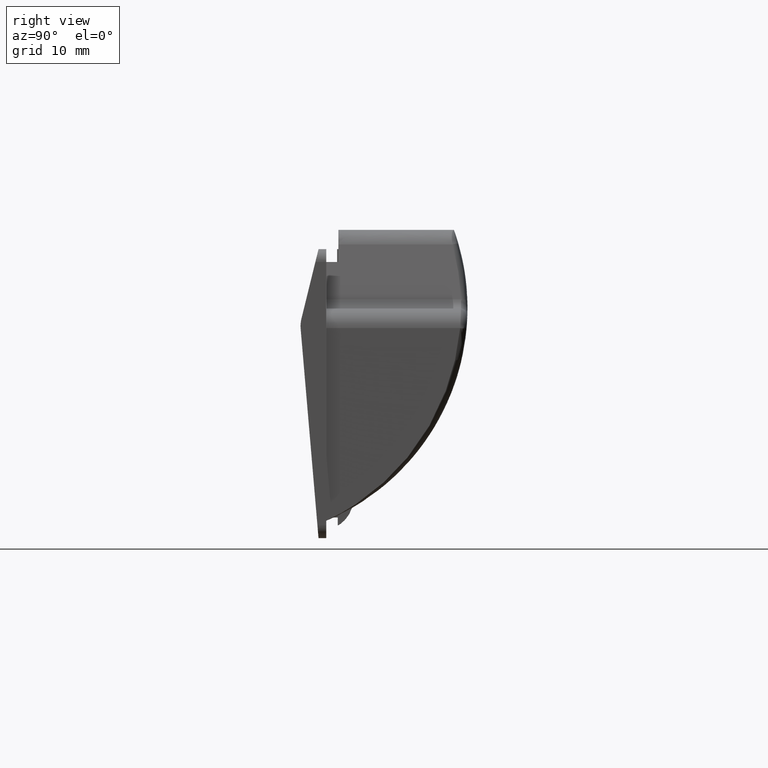
[diagram: clean part render]
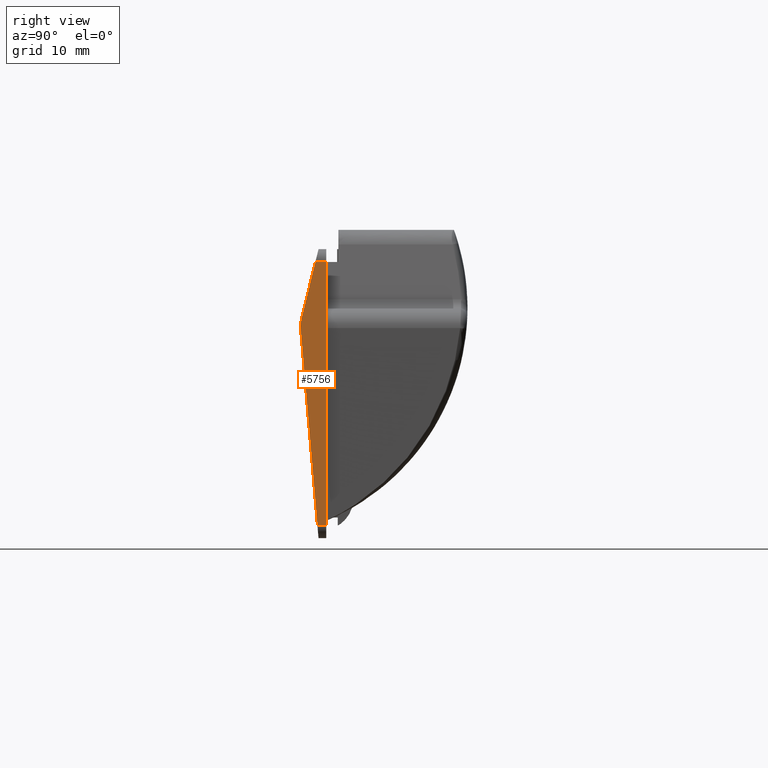
[diagram: same view with one face highlighted and labeled with its STEP entity id]
A machine part, right view. The second image highlights one B-rep face of the part: STEP entity #5756.
In plain terms, the highlighted face is a freeform B-spline surface patch.
Its self-contained STEP definition (entity closure, byte-faithful):
#4785=CARTESIAN_POINT('',(50.0,-1.370799975490242,-21.250000000000000));
#4786=VERTEX_POINT('',#4785);
#4807=CARTESIAN_POINT('',(50.0,0.0,-21.250000000000000));
#4808=VERTEX_POINT('',#4807);
#4822=CARTESIAN_POINT('',(50.0,-1.370799975490242,-21.250000000000000));
#4823=CARTESIAN_POINT('',(50.0,0.0,-21.250000000000000));
#4824=QUASI_UNIFORM_CURVE('',1,(#4822,#4823),.UNSPECIFIED.,.F.,.U.);
#4825=EDGE_CURVE('',#4786,#4808,#4824,.T.);
#4846=CARTESIAN_POINT('',(50.0,0.0,19.750000000000000));
#4847=VERTEX_POINT('',#4846);
#4868=CARTESIAN_POINT('',(50.0,-1.691457271738485,19.750000000000000));
#4869=VERTEX_POINT('',#4868);
#4883=CARTESIAN_POINT('',(50.0,0.0,19.750000000000000));
#4884=CARTESIAN_POINT('',(50.0,-1.691457271738485,19.750000000000000));
#4885=QUASI_UNIFORM_CURVE('',1,(#4883,#4884),.UNSPECIFIED.,.F.,.U.);
#4886=EDGE_CURVE('',#4847,#4869,#4885,.T.);
#5715=CARTESIAN_POINT('',(50.0,-4.199791503391549,-23.297949920534041));
#5716=CARTESIAN_POINT('',(50.0,0.199799695688522,-23.297949920534041));
#5717=CARTESIAN_POINT('',(50.0,-4.199791503391549,21.797951020239740));
#5718=CARTESIAN_POINT('',(50.0,0.199799695688522,21.797951020239740));
#5719=B_SPLINE_SURFACE_WITH_KNOTS('',1,1,((#5715,#5717),(#5716,#5718)),.UNSPECIFIED.,.F.,.F.,.U.,(2,2),(2,2),(0.0,4.399591199080071),(0.0,45.095900940773781),.UNSPECIFIED.);
#5720=CARTESIAN_POINT('',(50.0,0.0,-21.250000000000000));
#5721=CARTESIAN_POINT('',(50.0,0.0,19.750000000000000));
#5722=QUASI_UNIFORM_CURVE('',1,(#5720,#5721),.UNSPECIFIED.,.F.,.U.);
#5723=EDGE_CURVE('',#4808,#4847,#5722,.T.);
#5724=ORIENTED_EDGE('',*,*,#5723,.T.);
#5725=ORIENTED_EDGE('',*,*,#4886,.T.);
#5726=CARTESIAN_POINT('',(50.0,-3.855553000000000,10.943147999999780));
#5727=VERTEX_POINT('',#5726);
#5728=CARTESIAN_POINT('',(50.0,-1.691457271738485,19.750000000000000));
#5729=CARTESIAN_POINT('',(50.0,-3.855553000000000,10.943147999999780));
#5730=QUASI_UNIFORM_CURVE('',1,(#5728,#5729),.UNSPECIFIED.,.F.,.U.);
#5731=EDGE_CURVE('',#4869,#5727,#5730,.T.);
#5732=ORIENTED_EDGE('',*,*,#5731,.T.);
#5733=CARTESIAN_POINT('',(50.0,-3.981866026464724,9.324548309891391));
#5734=VERTEX_POINT('',#5733);
#5735=CARTESIAN_POINT('',(50.0,-3.855552999999986,10.943147999999780));
#5736=CARTESIAN_POINT('',(50.0,-4.051867653542099,10.144239611093594));
#5737=CARTESIAN_POINT('',(50.0,-3.981866026464725,9.324548309891389));
#5745=(BOUNDED_CURVE()B_SPLINE_CURVE(2,(#5735,#5736,#5737),.UNSPECIFIED.,.F.,.U.)CURVE()GEOMETRIC_REPRESENTATION_ITEM()QUASI_UNIFORM_CURVE()RATIONAL_B_SPLINE_CURVE((1.0,0.986732892238454,1.0))REPRESENTATION_ITEM(''));
#5746=EDGE_CURVE('',#5727,#5734,#5745,.T.);
#5747=ORIENTED_EDGE('',*,*,#5746,.T.);
#5748=CARTESIAN_POINT('',(50.0,-3.981866026464724,9.324548309891391));
#5749=CARTESIAN_POINT('',(50.0,-1.370799975490242,-21.250000000000000));
#5750=QUASI_UNIFORM_CURVE('',1,(#5748,#5749),.UNSPECIFIED.,.F.,.U.);
#5751=EDGE_CURVE('',#5734,#4786,#5750,.T.);
#5752=ORIENTED_EDGE('',*,*,#5751,.T.);
#5753=ORIENTED_EDGE('',*,*,#4825,.T.);
#5754=EDGE_LOOP('',(#5724,#5725,#5732,#5747,#5752,#5753));
#5755=FACE_OUTER_BOUND('',#5754,.T.);
#5756=ADVANCED_FACE('',(#5755),#5719,.T.);